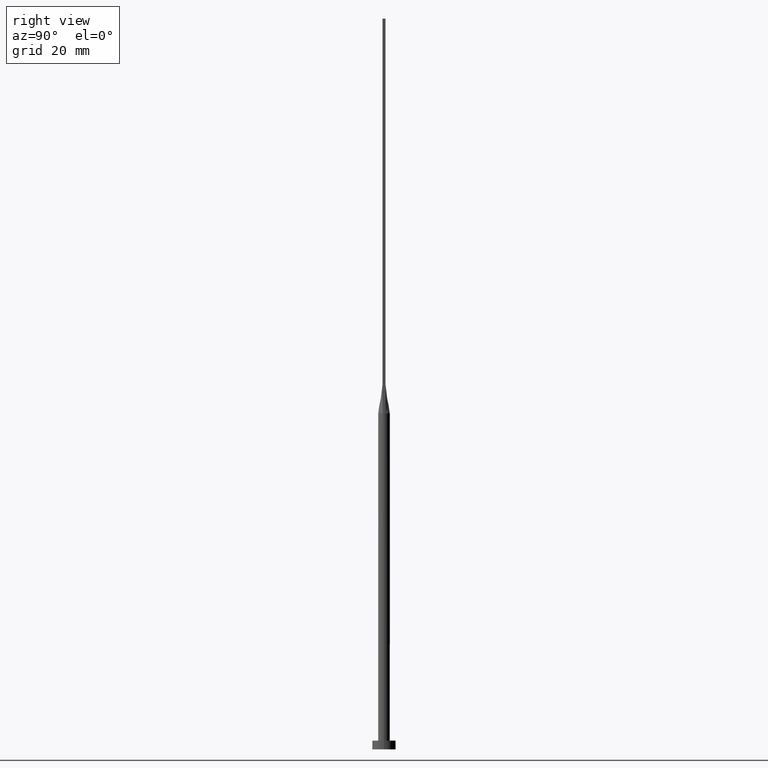
[diagram: clean part render]
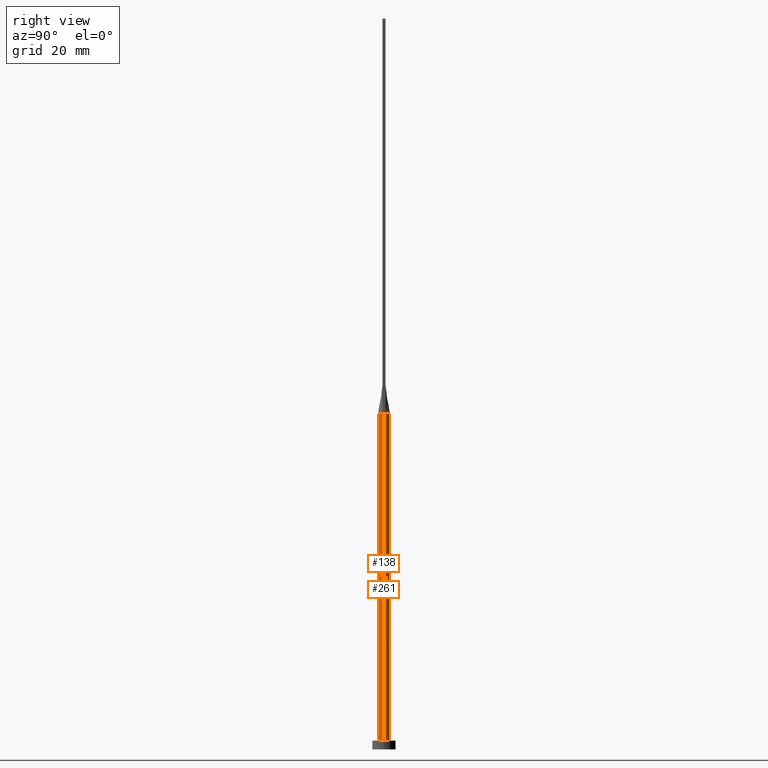
[diagram: same view with one multi-face feature highlighted, each face labeled with its STEP entity id]
A machine part, right view. The highlighted faces form ONE feature: a constant-radius fillet chain: 2 tangent blend faces with common blend radius 2 mm. The faces share edges in the B-rep.
Their STEP definitions:
[1] entity #261 (Cylinder):
#6 = CARTESIAN_POINT ( 'NONE',  ( -2.000000000000000000, 0.000000000000000000, 3.000000000000000000 ) ) ;
#12 = CARTESIAN_POINT ( 'NONE',  ( -0.9545234919502401105, 1.774214358793530177, 115.0000000000000000 ) ) ;
#22 = CARTESIAN_POINT ( 'NONE',  ( 1.486037034853319616, 1.356520562679217834, 114.9999999999999716 ) ) ;
#34 = CARTESIAN_POINT ( 'NONE',  ( -1.923179810488875541, 0.5494804890868837388, 115.0000000000000000 ) ) ;
#45 = AXIS2_PLACEMENT_3D ( 'NONE', #438, #347, #509 ) ;
#50 = CARTESIAN_POINT ( 'NONE',  ( 1.616149014776643522, 1.193458220519943103, 114.9999999999999858 ) ) ;
#58 = DIRECTION ( 'NONE',  ( 1.000000000000000000, 0.000000000000000000, 0.000000000000000000 ) ) ;
#65 = LINE ( 'NONE', #155, #290 ) ;
#70 = CARTESIAN_POINT ( 'NONE',  ( -0.5022746254375797248, 1.951069421695588169, 115.0000000000000142 ) ) ;
#74 = CARTESIAN_POINT ( 'NONE',  ( -2.000000000000000000, 8.710755549421510381E-17, 114.9999999999999858 ) ) ;
#104 = EDGE_CURVE ( 'NONE', #263, #424, #354, .T. ) ;
#106 = CARTESIAN_POINT ( 'NONE',  ( -1.879022738048941710, 0.7035303061092221810, 115.0000000000000142 ) ) ;
#109 = AXIS2_PLACEMENT_3D ( 'NONE', #254, #307, #58 ) ;
#125 = DIRECTION ( 'NONE',  ( -1.000000000000000000, 0.000000000000000000, 0.000000000000000000 ) ) ;
#128 = CARTESIAN_POINT ( 'NONE',  ( -0.2514338042514528415, 1.999999999999999556, 115.0000000000000426 ) ) ;
#131 = DIRECTION ( 'NONE',  ( -0.000000000000000000, -0.000000000000000000, -1.000000000000000000 ) ) ;
#134 = CARTESIAN_POINT ( 'NONE',  ( 2.000000000000000000, 2.759698982225367658E-17, 114.9999999999999858 ) ) ;
#136 = CARTESIAN_POINT ( 'NONE',  ( 1.923154993136894975, 0.5494733089275741778, 115.0000000000000000 ) ) ;
#146 = CARTESIAN_POINT ( 'NONE',  ( -1.486037034853319616, 1.356520562679218056, 115.0000000000000000 ) ) ;
#155 = CARTESIAN_POINT ( 'NONE',  ( 2.000000000000000000, 2.449293598294706414E-16, 115.0000000000000000 ) ) ;
#163 = CIRCLE ( 'NONE', #387, 2.000000000000000000 ) ;
#167 = EDGE_CURVE ( 'NONE', #424, #548, #258, .T. ) ;
#175 = CARTESIAN_POINT ( 'NONE',  ( 0.2514338042514535632, 1.999999999999999556, 115.0000000000000000 ) ) ;
#181 = CARTESIAN_POINT ( 'NONE',  ( 0.000000000000000000, 0.000000000000000000, 115.0000000000000000 ) ) ;
#192 = DIRECTION ( 'NONE',  ( -0.000000000000000000, -0.000000000000000000, -1.000000000000000000 ) ) ;
#194 = CARTESIAN_POINT ( 'NONE',  ( 1.923154993136894975, 0.5494733089275741778, 115.0000000000000000 ) ) ;
#196 = CARTESIAN_POINT ( 'NONE',  ( 1.155438169178558461, 1.647245198242353714, 114.9999999999999858 ) ) ;
#249 = DIRECTION ( 'NONE',  ( -0.000000000000000000, -0.000000000000000000, -1.000000000000000000 ) ) ;
#251 = CARTESIAN_POINT ( 'NONE',  ( -1.155438169178558017, 1.647245198242353936, 115.0000000000000426 ) ) ;
#254 = CARTESIAN_POINT ( 'NONE',  ( 0.000000000000000000, 0.000000000000000000, 115.0000000000000000 ) ) ;
#256 = CARTESIAN_POINT ( 'NONE',  ( 0.5022746254375803909, 1.951069421695587947, 115.0000000000000000 ) ) ;
#258 = B_SPLINE_CURVE_WITH_KNOTS ( 'NONE', 3,
 ( #136, #367, #338, #50, #22, #196, #385, #256, #175, #128, #70, #12, #251, #146, #544, #279, #106, #407 ),
 .UNSPECIFIED., .F., .F.,
 ( 4, 2, 2, 2, 2, 2, 2, 2, 4 ),
 ( 0.000000000000000000, 0.1249999999999999722, 0.2500000000000000000, 0.3750000000000000000, 0.5000000000000001110, 0.6250000000000001110, 0.7500000000000000000, 0.8750000000000000000, 1.000000000000000000 ),
 .UNSPECIFIED. ) ;
#261 = ADVANCED_FACE ( 'NONE', ( #483 ), #397, .T. ) ;
#262 = CARTESIAN_POINT ( 'NONE',  ( -2.000000000000000000, 0.000000000000000000, 115.0000000000000000 ) ) ;
#263 = VERTEX_POINT ( 'NONE', #134 ) ;
#279 = CARTESIAN_POINT ( 'NONE',  ( -1.812374357931688884, 0.8669367617086288780, 115.0000000000000284 ) ) ;
#290 = VECTOR ( 'NONE', #192, 1000.000000000000000 ) ;
#301 = CARTESIAN_POINT ( 'NONE',  ( 0.000000000000000000, 0.000000000000000000, 3.000000000000000000 ) ) ;
#307 = DIRECTION ( 'NONE',  ( 0.000000000000000000, 0.000000000000000000, 1.000000000000000000 ) ) ;
#308 = VECTOR ( 'NONE', #249, 1000.000000000000000 ) ;
#312 = ORIENTED_EDGE ( 'NONE', *, *, #522, .F. ) ;
#317 = AXIS2_PLACEMENT_3D ( 'NONE', #181, #131, #125 ) ;
#338 = CARTESIAN_POINT ( 'NONE',  ( 1.812374357931689328, 0.8669367617086293221, 115.0000000000000284 ) ) ;
#347 = DIRECTION ( 'NONE',  ( 0.000000000000000000, 0.000000000000000000, 1.000000000000000000 ) ) ;
#353 = VERTEX_POINT ( 'NONE', #6 ) ;
#354 = CIRCLE ( 'NONE', #109, 2.000000000000000000 ) ;
#366 = EDGE_LOOP ( 'NONE', ( #570, #485, #558, #312, #535, #437 ) ) ;
#367 = CARTESIAN_POINT ( 'NONE',  ( 1.879022738048942154, 0.7035303061092218480, 115.0000000000000142 ) ) ;
#385 = CARTESIAN_POINT ( 'NONE',  ( 0.9545234919502409987, 1.774214358793529955, 115.0000000000000142 ) ) ;
#387 = AXIS2_PLACEMENT_3D ( 'NONE', #301, #444, #516 ) ;
#397 = CYLINDRICAL_SURFACE ( 'NONE', #317, 2.000000000000000000 ) ;
#407 = CARTESIAN_POINT ( 'NONE',  ( -1.923179810488875541, 0.5494804890868837388, 115.0000000000000000 ) ) ;
#424 = VERTEX_POINT ( 'NONE', #194 ) ;
#434 = LINE ( 'NONE', #262, #308 ) ;
#437 = ORIENTED_EDGE ( 'NONE', *, *, #167, .F. ) ;
#438 = CARTESIAN_POINT ( 'NONE',  ( 0.000000000000000000, 0.000000000000000000, 115.0000000000000000 ) ) ;
#439 = EDGE_CURVE ( 'NONE', #263, #564, #65, .T. ) ;
#444 = DIRECTION ( 'NONE',  ( 0.000000000000000000, 0.000000000000000000, 1.000000000000000000 ) ) ;
#472 = CARTESIAN_POINT ( 'NONE',  ( 2.000000000000000000, 2.449293598294706414E-16, 3.000000000000000000 ) ) ;
#483 = FACE_OUTER_BOUND ( 'NONE', #366, .T. ) ;
#485 = ORIENTED_EDGE ( 'NONE', *, *, #439, .T. ) ;
#509 = DIRECTION ( 'NONE',  ( 1.000000000000000000, 0.000000000000000000, 0.000000000000000000 ) ) ;
#516 = DIRECTION ( 'NONE',  ( 1.000000000000000000, 0.000000000000000000, 0.000000000000000000 ) ) ;
#522 = EDGE_CURVE ( 'NONE', #560, #353, #434, .T. ) ;
#535 = ORIENTED_EDGE ( 'NONE', *, *, #540, .F. ) ;
#540 = EDGE_CURVE ( 'NONE', #548, #560, #569, .T. ) ;
#544 = CARTESIAN_POINT ( 'NONE',  ( -1.616149014776643966, 1.193458220519943103, 115.0000000000000284 ) ) ;
#548 = VERTEX_POINT ( 'NONE', #34 ) ;
#558 = ORIENTED_EDGE ( 'NONE', *, *, #563, .T. ) ;
#560 = VERTEX_POINT ( 'NONE', #74 ) ;
#563 = EDGE_CURVE ( 'NONE', #564, #353, #163, .T. ) ;
#564 = VERTEX_POINT ( 'NONE', #472 ) ;
#569 = CIRCLE ( 'NONE', #45, 2.000000000000000000 ) ;
#570 = ORIENTED_EDGE ( 'NONE', *, *, #104, .F. ) ;
[2] entity #138 (Cylinder):
#5 = CARTESIAN_POINT ( 'NONE',  ( -1.923161340940673369, -0.5494751859438878894, 115.0000000000000000 ) ) ;
#6 = CARTESIAN_POINT ( 'NONE',  ( -2.000000000000000000, 0.000000000000000000, 3.000000000000000000 ) ) ;
#16 = CIRCLE ( 'NONE', #579, 2.000000000000000000 ) ;
#20 = EDGE_LOOP ( 'NONE', ( #269, #273, #244, #81, #345, #154 ) ) ;
#29 = CIRCLE ( 'NONE', #80, 2.000000000000000000 ) ;
#43 = VERTEX_POINT ( 'NONE', #5 ) ;
#65 = LINE ( 'NONE', #155, #290 ) ;
#73 = AXIS2_PLACEMENT_3D ( 'NONE', #260, #207, #446 ) ;
#74 = CARTESIAN_POINT ( 'NONE',  ( -2.000000000000000000, 8.710755549421510381E-17, 114.9999999999999858 ) ) ;
#80 = AXIS2_PLACEMENT_3D ( 'NONE', #198, #164, #259 ) ;
#81 = ORIENTED_EDGE ( 'NONE', *, *, #500, .F. ) ;
#127 = AXIS2_PLACEMENT_3D ( 'NONE', #581, #316, #170 ) ;
#134 = CARTESIAN_POINT ( 'NONE',  ( 2.000000000000000000, 2.759698982225367658E-17, 114.9999999999999858 ) ) ;
#138 = ADVANCED_FACE ( 'NONE', ( #351 ), #306, .T. ) ;
#154 = ORIENTED_EDGE ( 'NONE', *, *, #463, .T. ) ;
#155 = CARTESIAN_POINT ( 'NONE',  ( 2.000000000000000000, 2.449293598294706414E-16, 115.0000000000000000 ) ) ;
#164 = DIRECTION ( 'NONE',  ( 0.000000000000000000, 0.000000000000000000, 1.000000000000000000 ) ) ;
#170 = DIRECTION ( 'NONE',  ( 1.000000000000000000, 0.000000000000000000, 0.000000000000000000 ) ) ;
#183 = CARTESIAN_POINT ( 'NONE',  ( 0.000000000000000000, 0.000000000000000000, 3.000000000000000000 ) ) ;
#192 = DIRECTION ( 'NONE',  ( -0.000000000000000000, -0.000000000000000000, -1.000000000000000000 ) ) ;
#198 = CARTESIAN_POINT ( 'NONE',  ( 0.000000000000000000, 0.000000000000000000, 115.0000000000000000 ) ) ;
#202 = CIRCLE ( 'NONE', #451, 2.000000000000000000 ) ;
#207 = DIRECTION ( 'NONE',  ( -0.000000000000000000, -0.000000000000000000, -1.000000000000000000 ) ) ;
#244 = ORIENTED_EDGE ( 'NONE', *, *, #268, .F. ) ;
#249 = DIRECTION ( 'NONE',  ( -0.000000000000000000, -0.000000000000000000, -1.000000000000000000 ) ) ;
#259 = DIRECTION ( 'NONE',  ( 1.000000000000000000, 0.000000000000000000, 0.000000000000000000 ) ) ;
#260 = CARTESIAN_POINT ( 'NONE',  ( 0.000000000000000000, 0.000000000000000000, 115.0000000000000000 ) ) ;
#262 = CARTESIAN_POINT ( 'NONE',  ( -2.000000000000000000, 0.000000000000000000, 115.0000000000000000 ) ) ;
#263 = VERTEX_POINT ( 'NONE', #134 ) ;
#268 = EDGE_CURVE ( 'NONE', #43, #309, #554, .T. ) ;
#269 = ORIENTED_EDGE ( 'NONE', *, *, #439, .F. ) ;
#273 = ORIENTED_EDGE ( 'NONE', *, *, #402, .F. ) ;
#290 = VECTOR ( 'NONE', #192, 1000.000000000000000 ) ;
#306 = CYLINDRICAL_SURFACE ( 'NONE', #73, 2.000000000000000000 ) ;
#308 = VECTOR ( 'NONE', #249, 1000.000000000000000 ) ;
#309 = VERTEX_POINT ( 'NONE', #319 ) ;
#316 = DIRECTION ( 'NONE',  ( 0.000000000000000000, 0.000000000000000000, 1.000000000000000000 ) ) ;
#319 = CARTESIAN_POINT ( 'NONE',  ( 1.923186205402444449, -0.5494823831763672173, 115.0000000000000000 ) ) ;
#339 = DIRECTION ( 'NONE',  ( 1.000000000000000000, 3.552713678800500929E-15, 0.000000000000000000 ) ) ;
#345 = ORIENTED_EDGE ( 'NONE', *, *, #522, .T. ) ;
#351 = FACE_OUTER_BOUND ( 'NONE', #20, .T. ) ;
#353 = VERTEX_POINT ( 'NONE', #6 ) ;
#376 = CARTESIAN_POINT ( 'NONE',  ( 0.000000000000000000, 0.000000000000000000, 115.0000000000000000 ) ) ;
#402 = EDGE_CURVE ( 'NONE', #309, #263, #16, .T. ) ;
#429 = DIRECTION ( 'NONE',  ( 0.000000000000000000, 0.000000000000000000, 1.000000000000000000 ) ) ;
#434 = LINE ( 'NONE', #262, #308 ) ;
#439 = EDGE_CURVE ( 'NONE', #263, #564, #65, .T. ) ;
#446 = DIRECTION ( 'NONE',  ( -1.000000000000000000, 0.000000000000000000, 0.000000000000000000 ) ) ;
#451 = AXIS2_PLACEMENT_3D ( 'NONE', #183, #429, #507 ) ;
#463 = EDGE_CURVE ( 'NONE', #353, #564, #202, .T. ) ;
#472 = CARTESIAN_POINT ( 'NONE',  ( 2.000000000000000000, 2.449293598294706414E-16, 3.000000000000000000 ) ) ;
#500 = EDGE_CURVE ( 'NONE', #560, #43, #29, .T. ) ;
#507 = DIRECTION ( 'NONE',  ( 1.000000000000000000, 0.000000000000000000, 0.000000000000000000 ) ) ;
#522 = EDGE_CURVE ( 'NONE', #560, #353, #434, .T. ) ;
#552 = DIRECTION ( 'NONE',  ( 0.000000000000000000, 0.000000000000000000, 1.000000000000000000 ) ) ;
#554 = CIRCLE ( 'NONE', #127, 2.000000000000000000 ) ;
#560 = VERTEX_POINT ( 'NONE', #74 ) ;
#564 = VERTEX_POINT ( 'NONE', #472 ) ;
#579 = AXIS2_PLACEMENT_3D ( 'NONE', #376, #552, #339 ) ;
#581 = CARTESIAN_POINT ( 'NONE',  ( 0.000000000000000000, 0.000000000000000000, 115.0000000000000000 ) ) ;